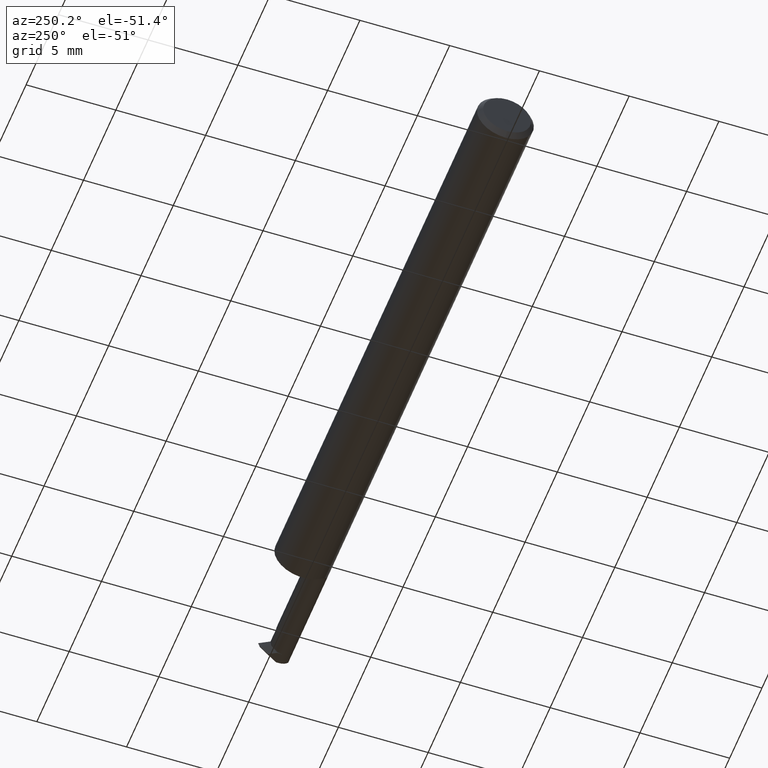
[diagram: clean part render]
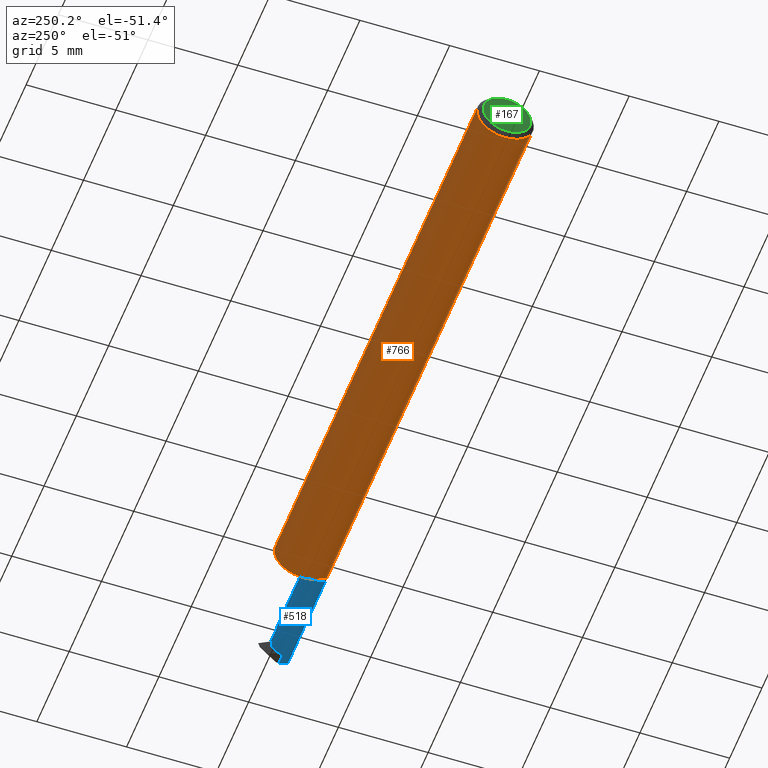
[diagram: same view with three faces highlighted in distinct colors, each labeled with its STEP entity id]
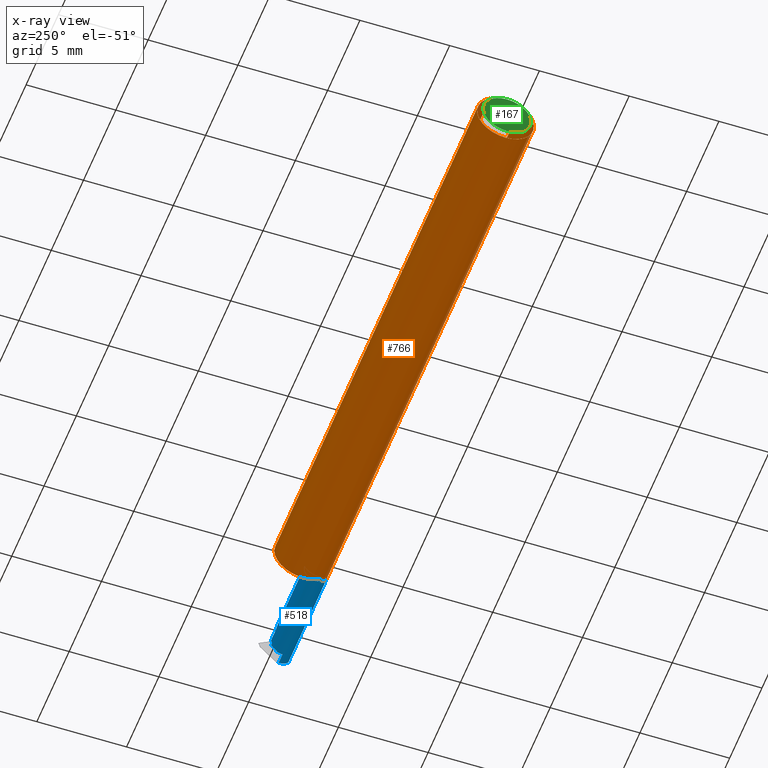
[diagram: x-ray of the same camera — body ghosted, the three highlighted faces saturated]
A machine part, auxiliary view with three faces highlighted in distinct colors.
The next image is the same camera in x-ray (body ghosted, the three faces saturated) — at least one of them is partly hidden behind the body in this view.
Their STEP definitions:

[orange] entity #766 — the highlighted cylindrical surface (edge-blend (fillet) strip) has radius 1.5837 mm, axis along (-1, -0, -0).
#2 = EDGE_CURVE ( 'NONE', #265, #480, #497, .T. ) ;
#3 = CARTESIAN_POINT ( 'NONE',  ( 1.252811054366238741, -0.05456945414940287536, -0.03043068662638008862 ) ) ;
#14 = B_SPLINE_CURVE_WITH_KNOTS ( 'NONE', 3,
 ( #253, #73, #330, #68, #320, #133, #3, #141, #264, #566, #625, #390 ),
 .UNSPECIFIED., .F., .F.,
 ( 4, 2, 2, 2, 2, 4 ),
 ( 1.964775102937643306E-07, 0.0001727984807541077690, 0.0003454004839979218119, 0.0006906044904855495725, 0.001035808496973177496, 0.001381012503460805202 ),
 .UNSPECIFIED. ) ;
#21 = LINE ( 'NONE', #467, #35 ) ;
#29 = DIRECTION ( 'NONE',  ( 0.000000000000000000, 0.000000000000000000, 1.000000000000000000 ) ) ;
#33 = CARTESIAN_POINT ( 'NONE',  ( 1.244999999999999885, -0.03398449163449160371, 0.05227405502106346330 ) ) ;
#34 = DIRECTION ( 'NONE',  ( 0.000000000000000000, 1.000000000000000000, 0.000000000000000000 ) ) ;
#35 = VECTOR ( 'NONE', #712, 39.37007874015748143 ) ;
#45 = DIRECTION ( 'NONE',  ( 1.000000000000000000, 0.000000000000000000, 0.000000000000000000 ) ) ;
#48 = CARTESIAN_POINT ( 'NONE',  ( 1.433925765466284474, -0.06235000000000000264, 0.006074234533715691838 ) ) ;
#54 = CARTESIAN_POINT ( 'NONE',  ( 1.422097359848866427, -0.05972451737451732467, 0.01790264015113353369 ) ) ;
#58 = VECTOR ( 'NONE', #680, 39.37007874015748143 ) ;
#60 = CARTESIAN_POINT ( 'NONE',  ( 1.246872896884827719, -0.04792976935622884210, 0.04070915924459904411 ) ) ;
#65 = VERTEX_POINT ( 'NONE', #579 ) ;
#68 = CARTESIAN_POINT ( 'NONE',  ( 1.261629367809834701, -0.05874277173330420820, -0.02093341624382459229 ) ) ;
#73 = CARTESIAN_POINT ( 'NONE',  ( 1.267694442236319663, -0.05972451737451730386, -0.01790264015113365859 ) ) ;
#74 = VERTEX_POINT ( 'NONE', #693 ) ;
#83 = CARTESIAN_POINT ( 'NONE',  ( 1.500000000000000222, -0.05972451737451735243, -0.01790264015113356491 ) ) ;
#91 = DIRECTION ( 'NONE',  ( -1.000000000000000000, -0.000000000000000000, -0.000000000000000000 ) ) ;
#95 = EDGE_CURVE ( 'NONE', #461, #683, #601, .T. ) ;
#99 = DIRECTION ( 'NONE',  ( -1.000000000000000000, -0.000000000000000000, -0.000000000000000000 ) ) ;
#106 = CARTESIAN_POINT ( 'NONE',  ( 1.422097359848866427, -0.05972451737451732467, 0.01790264015113353369 ) ) ;
#111 = CARTESIAN_POINT ( 'NONE',  ( 1.244999999999999885, -0.03386738844375228319, 0.05234999999999997294 ) ) ;
#113 = EDGE_LOOP ( 'NONE', ( #140, #317, #506, #516, #228, #207, #225, #118, #626, #567, #400, #350, #424 ) ) ;
#118 = ORIENTED_EDGE ( 'NONE', *, *, #148, .F. ) ;
#125 = DIRECTION ( 'NONE',  ( 0.000000000000000000, 0.000000000000000000, -1.000000000000000000 ) ) ;
#133 = CARTESIAN_POINT ( 'NONE',  ( 1.255286990740070774, -0.05631994730899902296, -0.02695336005890132738 ) ) ;
#138 = VECTOR ( 'NONE', #91, 39.37007874015748143 ) ;
#140 = ORIENTED_EDGE ( 'NONE', *, *, #236, .F. ) ;
#141 = CARTESIAN_POINT ( 'NONE',  ( 1.248887425056099953, -0.05018493426212367742, -0.03721994610182897956 ) ) ;
#148 = EDGE_CURVE ( 'NONE', #149, #265, #644, .T. ) ;
#149 = VERTEX_POINT ( 'NONE', #353 ) ;
#155 = EDGE_CURVE ( 'NONE', #74, #524, #205, .T. ) ;
#157 = CARTESIAN_POINT ( 'NONE',  ( 1.244999999999999885, -0.03398449163449160371, -0.05227405502106346330 ) ) ;
#175 = VERTEX_POINT ( 'NONE', #83 ) ;
#176 = CARTESIAN_POINT ( 'NONE',  ( 1.440000000000000169, -0.06235000000000005121, 7.347880794884152277E-18 ) ) ;
#177 = CARTESIAN_POINT ( 'NONE',  ( 1.269999999999999796, -0.05972451737451657527, 0.01790264015113448431 ) ) ;
#180 = CARTESIAN_POINT ( 'NONE',  ( 1.259871710243715137, -0.05820719995804415903, 0.02240966757376053678 ) ) ;
#199 = EDGE_CURVE ( 'NONE', #683, #590, #21, .T. ) ;
#205 = LINE ( 'NONE', #392, #138 ) ;
#207 = ORIENTED_EDGE ( 'NONE', *, *, #286, .F. ) ;
#219 = CARTESIAN_POINT ( 'NONE',  ( 0.000000000000000000, -0.03386738844375224849, 0.05234999999999997294 ) ) ;
#225 = ORIENTED_EDGE ( 'NONE', *, *, #2, .F. ) ;
#228 = ORIENTED_EDGE ( 'NONE', *, *, #678, .F. ) ;
#231 = B_SPLINE_CURVE_WITH_KNOTS ( 'NONE', 3,
 ( #361, #534, #60, #666, #726, #180, #430, #672, #538, #177 ),
 .UNSPECIFIED., .F., .F.,
 ( 4, 2, 2, 2, 4 ),
 ( 3.875135730125662611E-06, 0.0006911681331154243164, 0.001034814631808078081, 0.001206637881154398132, 0.001378461130500717967 ),
 .UNSPECIFIED. ) ;
#236 = EDGE_CURVE ( 'NONE', #175, #580, #731, .T. ) ;
#241 = CARTESIAN_POINT ( 'NONE',  ( 1.269999999999999796, -0.05972451737451657527, 0.01790264015113448431 ) ) ;
#253 = CARTESIAN_POINT ( 'NONE',  ( 1.269999999999999796, -0.05972451737451730386, -0.01790264015113363777 ) ) ;
#255 = CARTESIAN_POINT ( 'NONE',  ( 1.244999999999999885, 0.03386738844375224849, 0.05234999999999997294 ) ) ;
#257 = CIRCLE ( 'NONE', #574, 0.06235000000000000264 ) ;
#264 = CARTESIAN_POINT ( 'NONE',  ( 1.247409451668646696, -0.04748097443779549648, -0.04064880203371788042 ) ) ;
#265 = VERTEX_POINT ( 'NONE', #111 ) ;
#276 = CARTESIAN_POINT ( 'NONE',  ( 1.244999999999999885, 0.000000000000000000, 0.000000000000000000 ) ) ;
#281 = CARTESIAN_POINT ( 'NONE',  ( 0.000000000000000000, 0.000000000000000000, 0.000000000000000000 ) ) ;
#286 = EDGE_CURVE ( 'NONE', #480, #331, #231, .T. ) ;
#289 = CARTESIAN_POINT ( 'NONE',  ( 1.500000000000000222, 0.000000000000000000, 0.000000000000000000 ) ) ;
#290 = DIRECTION ( 'NONE',  ( 1.000000000000000000, 0.000000000000000000, 0.000000000000000000 ) ) ;
#314 = CARTESIAN_POINT ( 'NONE',  ( 1.269999999999999796, -0.05972451737451730386, -0.01790264015113363777 ) ) ;
#317 = ORIENTED_EDGE ( 'NONE', *, *, #439, .T. ) ;
#319 = AXIS2_PLACEMENT_3D ( 'NONE', #289, #99, #29 ) ;
#320 = CARTESIAN_POINT ( 'NONE',  ( 1.259906005836843201, -0.05821839633500722200, -0.02238001840969571984 ) ) ;
#327 = AXIS2_PLACEMENT_3D ( 'NONE', #281, #394, #412 ) ;
#330 = CARTESIAN_POINT ( 'NONE',  ( 1.265495029312765585, -0.05949435531769821373, -0.01869071512488954326 ) ) ;
#331 = VERTEX_POINT ( 'NONE', #241 ) ;
#339 = VERTEX_POINT ( 'NONE', #106 ) ;
#347 = EDGE_CURVE ( 'NONE', #65, #590, #554, .T. ) ;
#350 = ORIENTED_EDGE ( 'NONE', *, *, #95, .F. ) ;
#352 = CIRCLE ( 'NONE', #319, 0.06235000000000000264 ) ;
#353 = CARTESIAN_POINT ( 'NONE',  ( 0.01000000000000001582, -0.03386738844375224849, 0.05234999999999997294 ) ) ;
#361 = CARTESIAN_POINT ( 'NONE',  ( 1.244999999999999885, -0.03398449163449160371, 0.05227405502106346330 ) ) ;
#385 = VECTOR ( 'NONE', #655, 39.37007874015748143 ) ;
#390 = CARTESIAN_POINT ( 'NONE',  ( 1.244999999999999885, -0.03398449163449160371, -0.05227405502106346330 ) ) ;
#392 = CARTESIAN_POINT ( 'NONE',  ( 2.249639673992813781E-32, -0.06234999999999999570, 1.836970198721040781E-16 ) ) ;
#394 = DIRECTION ( 'NONE',  ( -1.000000000000000000, -0.000000000000000000, -0.000000000000000000 ) ) ;
#400 = ORIENTED_EDGE ( 'NONE', *, *, #199, .F. ) ;
#411 = DIRECTION ( 'NONE',  ( 1.000000000000000000, 1.134245723387741042E-16, 0.000000000000000000 ) ) ;
#412 = DIRECTION ( 'NONE',  ( 0.000000000000000000, 0.000000000000000000, 1.000000000000000000 ) ) ;
#415 = AXIS2_PLACEMENT_3D ( 'NONE', #543, #620, #791 ) ;
#424 = ORIENTED_EDGE ( 'NONE', *, *, #671, .F. ) ;
#430 = CARTESIAN_POINT ( 'NONE',  ( 1.261589223798628145, -0.05873344909996280894, 0.02096039187779610499 ) ) ;
#439 = EDGE_CURVE ( 'NONE', #175, #74, #352, .T. ) ;
#443 = FACE_OUTER_BOUND ( 'NONE', #113, .T. ) ;
#461 = VERTEX_POINT ( 'NONE', #157 ) ;
#467 = CARTESIAN_POINT ( 'NONE',  ( 0.000000000000000000, 0.03386738844375224849, 0.05234999999999997294 ) ) ;
#480 = VERTEX_POINT ( 'NONE', #33 ) ;
#481 = CARTESIAN_POINT ( 'NONE',  ( 0.01000000000000001582, 0.000000000000000000, 0.000000000000000000 ) ) ;
#486 =( BOUNDED_CURVE ( )  B_SPLINE_CURVE ( 3, ( #176, #48, #600, #54 ),
 .UNSPECIFIED., .F., .F. ) 
 B_SPLINE_CURVE_WITH_KNOTS ( ( 4, 4 ),
 ( 4.712388980384689674, 5.003619720771991020 ),
 .UNSPECIFIED. ) 
 CURVE ( )  GEOMETRIC_REPRESENTATION_ITEM ( )  RATIONAL_B_SPLINE_CURVE ( ( 1.000000000000000000, 0.9929445347935180743, 0.9929445347935180743, 1.000000000000000000 ) ) 
 REPRESENTATION_ITEM ( '' )  );
#489 = VECTOR ( 'NONE', #290, 39.37007874015748143 ) ;
#492 = LINE ( 'NONE', #738, #58 ) ;
#497 = CIRCLE ( 'NONE', #415, 0.06235000000000000264 ) ;
#506 = ORIENTED_EDGE ( 'NONE', *, *, #155, .T. ) ;
#516 = ORIENTED_EDGE ( 'NONE', *, *, #551, .T. ) ;
#524 = VERTEX_POINT ( 'NONE', #612 ) ;
#531 = DIRECTION ( 'NONE',  ( 0.000000000000000000, 0.000000000000000000, -1.000000000000000000 ) ) ;
#534 = CARTESIAN_POINT ( 'NONE',  ( 1.245000000000000551, -0.04161940706322061340, 0.04731043168223619810 ) ) ;
#538 = CARTESIAN_POINT ( 'NONE',  ( 1.267695648212861403, -0.05972451737461931948, 0.01790264015079356605 ) ) ;
#543 = CARTESIAN_POINT ( 'NONE',  ( 1.244999999999999885, 0.000000000000000000, 0.000000000000000000 ) ) ;
#551 = EDGE_CURVE ( 'NONE', #524, #339, #486, .T. ) ;
#554 = CIRCLE ( 'NONE', #623, 0.06235000000000000264 ) ;
#566 = CARTESIAN_POINT ( 'NONE',  ( 1.245480735420237073, -0.04132121511910270828, -0.04689696388274845057 ) ) ;
#567 = ORIENTED_EDGE ( 'NONE', *, *, #347, .T. ) ;
#574 = AXIS2_PLACEMENT_3D ( 'NONE', #481, #659, #125 ) ;
#578 = EDGE_CURVE ( 'NONE', #149, #65, #257, .T. ) ;
#579 = CARTESIAN_POINT ( 'NONE',  ( 0.01000000000000001582, 0.000000000000000000, -0.06235000000000000264 ) ) ;
#580 = VERTEX_POINT ( 'NONE', #314 ) ;
#590 = VERTEX_POINT ( 'NONE', #796 ) ;
#592 = CARTESIAN_POINT ( 'NONE',  ( 0.01000000000000001582, 0.000000000000000000, 0.000000000000000000 ) ) ;
#600 = CARTESIAN_POINT ( 'NONE',  ( 1.427915815758181495, -0.06146862058302896697, 0.01208418424181842941 ) ) ;
#601 = CIRCLE ( 'NONE', #624, 0.06235000000000000264 ) ;
#612 = CARTESIAN_POINT ( 'NONE',  ( 1.440000000000000169, -0.06235000000000005121, 7.347880794884152277E-18 ) ) ;
#620 = DIRECTION ( 'NONE',  ( 1.000000000000000000, 1.134245723387741042E-16, 0.000000000000000000 ) ) ;
#623 = AXIS2_PLACEMENT_3D ( 'NONE', #592, #45, #531 ) ;
#624 = AXIS2_PLACEMENT_3D ( 'NONE', #276, #411, #34 ) ;
#625 = CARTESIAN_POINT ( 'NONE',  ( 1.244999999999999885, -0.03780010745447930087, -0.04979344080694603214 ) ) ;
#626 = ORIENTED_EDGE ( 'NONE', *, *, #578, .T. ) ;
#644 = LINE ( 'NONE', #219, #489 ) ;
#655 = DIRECTION ( 'NONE',  ( -1.000000000000000000, -1.134245723387741042E-16, -0.000000000000000000 ) ) ;
#659 = DIRECTION ( 'NONE',  ( 1.000000000000000000, 0.000000000000000000, 0.000000000000000000 ) ) ;
#666 = CARTESIAN_POINT ( 'NONE',  ( 1.252828924468620597, -0.05459141881665660612, 0.03039808342347008474 ) ) ;
#671 = EDGE_CURVE ( 'NONE', #580, #461, #14, .T. ) ;
#672 = CARTESIAN_POINT ( 'NONE',  ( 1.265489926355211514, -0.05949486328318331213, 0.01869003247091953479 ) ) ;
#678 = EDGE_CURVE ( 'NONE', #331, #339, #492, .T. ) ;
#680 = DIRECTION ( 'NONE',  ( 1.000000000000000000, 1.134245723387741042E-16, 0.000000000000000000 ) ) ;
#683 = VERTEX_POINT ( 'NONE', #255 ) ;
#685 = CYLINDRICAL_SURFACE ( 'NONE', #327, 0.06235000000000000264 ) ;
#693 = CARTESIAN_POINT ( 'NONE',  ( 1.500000000000000222, -0.06235000000000000264, 0.000000000000000000 ) ) ;
#712 = DIRECTION ( 'NONE',  ( -1.000000000000000000, -0.000000000000000000, -0.000000000000000000 ) ) ;
#720 = CARTESIAN_POINT ( 'NONE',  ( 1.370399147038914300, -0.05972451737451731774, -0.01790264015113355450 ) ) ;
#726 = CARTESIAN_POINT ( 'NONE',  ( 1.255246444394054084, -0.05629737996108075820, 0.02700227435604360751 ) ) ;
#731 = LINE ( 'NONE', #720, #385 ) ;
#738 = CARTESIAN_POINT ( 'NONE',  ( 1.370399147038914300, -0.05972451737451731774, 0.01790264015113355450 ) ) ;
#766 = ADVANCED_FACE ( 'NONE', ( #443 ), #685, .T. ) ;
#791 = DIRECTION ( 'NONE',  ( 0.000000000000000000, 1.000000000000000000, 0.000000000000000000 ) ) ;
#796 = CARTESIAN_POINT ( 'NONE',  ( 0.01000000000000001582, 0.03386738844375224849, 0.05234999999999997294 ) ) ;

[blue] entity #518 — the highlighted cylindrical surface (edge-blend (fillet) strip) has radius 0.6985 mm, axis along (-1, -0, -0).
#6 = EDGE_CURVE ( 'NONE', #246, #109, #758, .T. ) ;
#9 = ORIENTED_EDGE ( 'NONE', *, *, #6, .F. ) ;
#16 =( BOUNDED_CURVE ( )  B_SPLINE_CURVE ( 3, ( #447, #316, #690, #78 ),
 .UNSPECIFIED., .F., .T. ) 
 B_SPLINE_CURVE_WITH_KNOTS ( ( 4, 4 ),
 ( 1.204277183876086177, 1.570796326794897668 ),
 .UNSPECIFIED. ) 
 CURVE ( )  GEOMETRIC_REPRESENTATION_ITEM ( )  RATIONAL_B_SPLINE_CURVE ( ( 1.000000000000000000, 0.9888366050426361520, 0.9888366050426361520, 1.000000000000000000 ) ) 
 REPRESENTATION_ITEM ( '' )  );
#18 = EDGE_CURVE ( 'NONE', #754, #653, #322, .T. ) ;
#25 = CARTESIAN_POINT ( 'NONE',  ( 1.475228371895891621, -0.02177601815582000389, -0.02155757741455697346 ) ) ;
#36 = EDGE_CURVE ( 'NONE', #311, #395, #267, .T. ) ;
#47 = ORIENTED_EDGE ( 'NONE', *, *, #36, .F. ) ;
#55 = CARTESIAN_POINT ( 'NONE',  ( 1.269999999999999796, -0.03885000000000005116, 0.000000000000000000 ) ) ;
#58 = VECTOR ( 'NONE', #680, 39.37007874015748143 ) ;
#77 = ORIENTED_EDGE ( 'NONE', *, *, #139, .T. ) ;
#78 = CARTESIAN_POINT ( 'NONE',  ( 1.469798294077828693, -0.01134999999999997816, 0.000000000000000000 ) ) ;
#83 = CARTESIAN_POINT ( 'NONE',  ( 1.500000000000000222, -0.05972451737451735243, -0.01790264015113356491 ) ) ;
#85 = DIRECTION ( 'NONE',  ( 0.000000000000000000, 1.862623632043813590E-15, 1.000000000000000000 ) ) ;
#93 = ORIENTED_EDGE ( 'NONE', *, *, #542, .T. ) ;
#106 = CARTESIAN_POINT ( 'NONE',  ( 1.422097359848866427, -0.05972451737451732467, 0.01790264015113353369 ) ) ;
#109 = VERTEX_POINT ( 'NONE', #510 ) ;
#115 = CARTESIAN_POINT ( 'NONE',  ( 1.473924189092572501, -0.01342367646772176307, -0.01049893562539213655 ) ) ;
#116 = CIRCLE ( 'NONE', #284, 0.02750000000000005565 ) ;
#119 = CARTESIAN_POINT ( 'NONE',  ( 1.244999999999999885, -0.03885000000000005116, 0.000000000000000000 ) ) ;
#120 = CARTESIAN_POINT ( 'NONE',  ( 1.473852846440464770, -0.01317653827132691906, -0.009855118612495666550 ) ) ;
#139 = EDGE_CURVE ( 'NONE', #442, #109, #594, .T. ) ;
#175 = VERTEX_POINT ( 'NONE', #83 ) ;
#187 = CARTESIAN_POINT ( 'NONE',  ( 1.474005759765332213, -0.01389871478465289079, -0.01156264771531032021 ) ) ;
#201 = VERTEX_POINT ( 'NONE', #650 ) ;
#202 = CARTESIAN_POINT ( 'NONE',  ( 1.473975355100137330, -0.01385409030504961350, -0.01146536081080263246 ) ) ;
#209 = CARTESIAN_POINT ( 'NONE',  ( 1.473975355100137330, -0.02738463918919738574, -0.02499590969495040643 ) ) ;
#227 = CARTESIAN_POINT ( 'NONE',  ( 1.476170497951057259, -0.03885000000000002340, -0.02750000000000005218 ) ) ;
#236 = EDGE_CURVE ( 'NONE', #175, #580, #731, .T. ) ;
#237 = VECTOR ( 'NONE', #646, 39.37007874015748143 ) ;
#239 = ORIENTED_EDGE ( 'NONE', *, *, #301, .F. ) ;
#241 = CARTESIAN_POINT ( 'NONE',  ( 1.269999999999999796, -0.05972451737451657527, 0.01790264015113448431 ) ) ;
#242 = EDGE_CURVE ( 'NONE', #653, #442, #116, .T. ) ;
#243 = ORIENTED_EDGE ( 'NONE', *, *, #699, .T. ) ;
#246 = VERTEX_POINT ( 'NONE', #227 ) ;
#248 = CIRCLE ( 'NONE', #688, 0.02750000000000003136 ) ;
#249 =( BOUNDED_CURVE ( )  B_SPLINE_CURVE ( 3, ( #602, #426, #115, #366 ),
 .UNSPECIFIED., .F., .F. ) 
 B_SPLINE_CURVE_WITH_KNOTS ( ( 4, 4 ),
 ( 4.453915720960718083, 4.529129408925288480 ),
 .UNSPECIFIED. ) 
 CURVE ( )  GEOMETRIC_REPRESENTATION_ITEM ( )  RATIONAL_B_SPLINE_CURVE ( ( 1.000000000000000000, 0.9995286306529715947, 0.9995286306529715947, 1.000000000000000000 ) ) 
 REPRESENTATION_ITEM ( '' )  );
#259 = CARTESIAN_POINT ( 'NONE',  ( 1.409553586986023621, -0.01134999999999997816, 0.03044641301397626662 ) ) ;
#267 = LINE ( 'NONE', #787, #367 ) ;
#279 = CARTESIAN_POINT ( 'NONE',  ( 1.500000000000000222, -0.03884999999999987769, -0.02750000000000004871 ) ) ;
#282 = ORIENTED_EDGE ( 'NONE', *, *, #236, .T. ) ;
#284 = AXIS2_PLACEMENT_3D ( 'NONE', #660, #476, #422 ) ;
#291 = ORIENTED_EDGE ( 'NONE', *, *, #242, .T. ) ;
#301 = EDGE_CURVE ( 'NONE', #754, #311, #249, .T. ) ;
#304 = CARTESIAN_POINT ( 'NONE',  ( 1.475228371895891621, -0.02177601815582000389, -0.02155757741455697346 ) ) ;
#307 = DIRECTION ( 'NONE',  ( -1.000000000000000000, -1.134245723387741042E-16, -0.000000000000000000 ) ) ;
#311 = VERTEX_POINT ( 'NONE', #120 ) ;
#314 = CARTESIAN_POINT ( 'NONE',  ( 1.269999999999999796, -0.05972451737451730386, -0.01790264015113363777 ) ) ;
#316 = CARTESIAN_POINT ( 'NONE',  ( 1.468556368985876492, -0.01196571961165013472, -0.006700828162844590062 ) ) ;
#318 = CARTESIAN_POINT ( 'NONE',  ( 1.474035685581546851, -0.01394390647475401111, -0.01165967243955293511 ) ) ;
#321 = EDGE_LOOP ( 'NONE', ( #291, #77, #9, #696, #409, #282, #564, #344, #243, #93, #513, #47, #239, #359 ) ) ;
#322 =( BOUNDED_CURVE ( )  B_SPLINE_CURVE ( 3, ( #609, #318, #187, #436 ),
 .UNSPECIFIED., .F., .F. ) 
 B_SPLINE_CURVE_WITH_KNOTS ( ( 4, 4 ),
 ( 3.485257986103865502, 3.496934258707131260 ),
 .UNSPECIFIED. ) 
 CURVE ( )  GEOMETRIC_REPRESENTATION_ITEM ( )  RATIONAL_B_SPLINE_CURVE ( ( 1.000000000000000000, 0.9999886387537773036, 0.9999886387537773036, 1.000000000000000000 ) ) 
 REPRESENTATION_ITEM ( '' )  );
#323 = EDGE_CURVE ( 'NONE', #331, #580, #613, .T. ) ;
#324 = CARTESIAN_POINT ( 'NONE',  ( 1.476170497951057259, -0.03885000000000002340, -0.02750000000000005218 ) ) ;
#331 = VERTEX_POINT ( 'NONE', #241 ) ;
#339 = VERTEX_POINT ( 'NONE', #106 ) ;
#344 = ORIENTED_EDGE ( 'NONE', *, *, #678, .T. ) ;
#357 = DIRECTION ( 'NONE',  ( 0.000000000000000000, -1.000000000000000000, 0.000000000000000000 ) ) ;
#359 = ORIENTED_EDGE ( 'NONE', *, *, #18, .T. ) ;
#366 = CARTESIAN_POINT ( 'NONE',  ( 1.473852846440464770, -0.01317653827132691906, -0.009855118612495666550 ) ) ;
#367 = VECTOR ( 'NONE', #380, 39.37007874015748143 ) ;
#375 = LINE ( 'NONE', #785, #717 ) ;
#380 = DIRECTION ( 'NONE',  ( -1.000000000000000000, -1.134245723387741042E-16, -0.000000000000000000 ) ) ;
#384 = VERTEX_POINT ( 'NONE', #279 ) ;
#385 = VECTOR ( 'NONE', #655, 39.37007874015748143 ) ;
#395 = VERTEX_POINT ( 'NONE', #572 ) ;
#409 = ORIENTED_EDGE ( 'NONE', *, *, #433, .F. ) ;
#422 = DIRECTION ( 'NONE',  ( 0.000000000000000000, 0.000000000000000000, -1.000000000000000000 ) ) ;
#426 = CARTESIAN_POINT ( 'NONE',  ( 1.473994984159307631, -0.01369484614336949693, -0.01113300552786451215 ) ) ;
#428 = DIRECTION ( 'NONE',  ( -1.000000000000000000, -1.134245723387741042E-16, -0.000000000000000000 ) ) ;
#433 = EDGE_CURVE ( 'NONE', #175, #384, #248, .T. ) ;
#436 = CARTESIAN_POINT ( 'NONE',  ( 1.473975355100137330, -0.01385409030504961350, -0.01146536081080263246 ) ) ;
#440 = CARTESIAN_POINT ( 'NONE',  ( 1.422097359848866427, -0.05972451737451732467, 0.01790264015113353369 ) ) ;
#442 = VERTEX_POINT ( 'NONE', #514 ) ;
#445 = CARTESIAN_POINT ( 'NONE',  ( 1.476050509122581289, -0.03259200295785259077, -0.02750000000000005565 ) ) ;
#447 = CARTESIAN_POINT ( 'NONE',  ( 1.467971755806501744, -0.01317653827132694508, -0.009855118612495812266 ) ) ;
#455 = CARTESIAN_POINT ( 'NONE',  ( 1.670798294077828761, -0.03884999999999987769, -0.02750000000000004871 ) ) ;
#476 = DIRECTION ( 'NONE',  ( -1.000000000000000000, -0.000000000000000000, -0.000000000000000000 ) ) ;
#492 = LINE ( 'NONE', #738, #58 ) ;
#498 = CARTESIAN_POINT ( 'NONE',  ( 1.440000000000000169, -0.01134999999999997816, 3.122849337825770881E-17 ) ) ;
#510 = CARTESIAN_POINT ( 'NONE',  ( 1.475228371895891621, -0.02177601815582000389, -0.02155757741455697346 ) ) ;
#513 = ORIENTED_EDGE ( 'NONE', *, *, #662, .F. ) ;
#514 = CARTESIAN_POINT ( 'NONE',  ( 1.473975355100137330, -0.02738463918919738574, -0.02499590969495040643 ) ) ;
#515 = CARTESIAN_POINT ( 'NONE',  ( 1.474601279444732294, -0.02538184647460621848, -0.02407724974689201200 ) ) ;
#518 = ADVANCED_FACE ( 'NONE', ( #540 ), #730, .T. ) ;
#540 = FACE_OUTER_BOUND ( 'NONE', #321, .T. ) ;
#542 = EDGE_CURVE ( 'NONE', #201, #747, #375, .T. ) ;
#552 = CARTESIAN_POINT ( 'NONE',  ( 1.398986298850612542, -0.03990374733517172007, 0.04101370114938719669 ) ) ;
#563 = CARTESIAN_POINT ( 'NONE',  ( 1.474065131528796924, -0.01398966383505123243, -0.01175643167656513499 ) ) ;
#564 = ORIENTED_EDGE ( 'NONE', *, *, #323, .F. ) ;
#572 = CARTESIAN_POINT ( 'NONE',  ( 1.467971755806501744, -0.01317653827132694508, -0.009855118612495812266 ) ) ;
#573 = CARTESIAN_POINT ( 'NONE',  ( 1.475020960382667168, -0.02350331512228461678, -0.02292562710204216342 ) ) ;
#580 = VERTEX_POINT ( 'NONE', #314 ) ;
#583 = AXIS2_PLACEMENT_3D ( 'NONE', #55, #307, #357 ) ;
#594 =( BOUNDED_CURVE ( )  B_SPLINE_CURVE ( 3, ( #209, #515, #573, #25 ),
 .UNSPECIFIED., .F., .F. ) 
 B_SPLINE_CURVE_WITH_KNOTS ( ( 4, 4 ),
 ( 2.786251048472454528, 3.026049159407427691 ),
 .UNSPECIFIED. ) 
 CURVE ( )  GEOMETRIC_REPRESENTATION_ITEM ( )  RATIONAL_B_SPLINE_CURVE ( ( 1.000000000000000000, 0.9952138100589245084, 0.9952138100589245084, 1.000000000000000000 ) ) 
 REPRESENTATION_ITEM ( '' )  );
#602 = CARTESIAN_POINT ( 'NONE',  ( 1.474065131528796924, -0.01398966383505123243, -0.01175643167656513499 ) ) ;
#605 = DIRECTION ( 'NONE',  ( 1.000000000000000000, 1.134245723387741042E-16, 0.000000000000000000 ) ) ;
#609 = CARTESIAN_POINT ( 'NONE',  ( 1.474065131528796924, -0.01398966383505123243, -0.01175643167656513499 ) ) ;
#613 = CIRCLE ( 'NONE', #583, 0.02750000000000008341 ) ;
#618 = CARTESIAN_POINT ( 'NONE',  ( 1.469798294077828693, -0.01134999999999997816, 0.000000000000000000 ) ) ;
#645 =( BOUNDED_CURVE ( )  B_SPLINE_CURVE ( 3, ( #440, #552, #259, #498 ),
 .UNSPECIFIED., .F., .F. ) 
 B_SPLINE_CURVE_WITH_KNOTS ( ( 4, 4 ),
 ( 5.421296776229736381, 7.853981633974482790 ),
 .UNSPECIFIED. ) 
 CURVE ( )  GEOMETRIC_REPRESENTATION_ITEM ( )  RATIONAL_B_SPLINE_CURVE ( ( 1.000000000000000000, 0.5647188418235031815, 0.5647188418235031815, 1.000000000000000000 ) ) 
 REPRESENTATION_ITEM ( '' )  );
#646 = DIRECTION ( 'NONE',  ( -1.000000000000000000, -0.000000000000000000, -0.000000000000000000 ) ) ;
#650 = CARTESIAN_POINT ( 'NONE',  ( 1.440000000000000169, -0.01134999999999997816, 3.122849337825770881E-17 ) ) ;
#653 = VERTEX_POINT ( 'NONE', #202 ) ;
#655 = DIRECTION ( 'NONE',  ( -1.000000000000000000, -1.134245723387741042E-16, -0.000000000000000000 ) ) ;
#660 = CARTESIAN_POINT ( 'NONE',  ( 1.473975355100137330, -0.03885000000000002340, 0.000000000000000000 ) ) ;
#662 = EDGE_CURVE ( 'NONE', #395, #747, #16, .T. ) ;
#664 = DIRECTION ( 'NONE',  ( 0.000000000000000000, -1.000000000000000000, 0.000000000000000000 ) ) ;
#678 = EDGE_CURVE ( 'NONE', #331, #339, #492, .T. ) ;
#680 = DIRECTION ( 'NONE',  ( 1.000000000000000000, 1.134245723387741042E-16, 0.000000000000000000 ) ) ;
#688 = AXIS2_PLACEMENT_3D ( 'NONE', #770, #701, #85 ) ;
#690 = CARTESIAN_POINT ( 'NONE',  ( 1.469172088597526793, -0.01134999999999996775, -0.003378702423621002347 ) ) ;
#696 = ORIENTED_EDGE ( 'NONE', *, *, #792, .F. ) ;
#699 = EDGE_CURVE ( 'NONE', #339, #201, #645, .T. ) ;
#701 = DIRECTION ( 'NONE',  ( 1.000000000000000000, 0.000000000000000000, 0.000000000000000000 ) ) ;
#713 = LINE ( 'NONE', #455, #237 ) ;
#717 = VECTOR ( 'NONE', #605, 39.37007874015748143 ) ;
#720 = CARTESIAN_POINT ( 'NONE',  ( 1.370399147038914300, -0.05972451737451731774, -0.01790264015113355450 ) ) ;
#730 = CYLINDRICAL_SURFACE ( 'NONE', #751, 0.02750000000000005565 ) ;
#731 = LINE ( 'NONE', #720, #385 ) ;
#732 = CARTESIAN_POINT ( 'NONE',  ( 1.475724386251446418, -0.02668173654477137488, -0.02544299297377720578 ) ) ;
#738 = CARTESIAN_POINT ( 'NONE',  ( 1.370399147038914300, -0.05972451737451731774, 0.01790264015113355450 ) ) ;
#747 = VERTEX_POINT ( 'NONE', #618 ) ;
#751 = AXIS2_PLACEMENT_3D ( 'NONE', #119, #428, #664 ) ;
#754 = VERTEX_POINT ( 'NONE', #563 ) ;
#758 =( BOUNDED_CURVE ( )  B_SPLINE_CURVE ( 3, ( #324, #445, #732, #304 ),
 .UNSPECIFIED., .F., .F. ) 
 B_SPLINE_CURVE_WITH_KNOTS ( ( 4, 4 ),
 ( 3.324852225049196974, 3.994706894264279828 ),
 .UNSPECIFIED. ) 
 CURVE ( )  GEOMETRIC_REPRESENTATION_ITEM ( )  RATIONAL_B_SPLINE_CURVE ( ( 1.000000000000000000, 0.9629561315200089178, 0.9629561315200089178, 1.000000000000000000 ) ) 
 REPRESENTATION_ITEM ( '' )  );
#770 = CARTESIAN_POINT ( 'NONE',  ( 1.500000000000000222, -0.03885000000000002340, 0.000000000000000000 ) ) ;
#785 = CARTESIAN_POINT ( 'NONE',  ( 1.244999999999999885, -0.01134999999999999898, 3.122849337825770881E-17 ) ) ;
#787 = CARTESIAN_POINT ( 'NONE',  ( 1.244999999999999885, -0.01317653827132692426, -0.009855118612495709918 ) ) ;
#792 = EDGE_CURVE ( 'NONE', #384, #246, #713, .T. ) ;

[green] entity #167 — the highlighted planar face has unit normal (1, 0, 0).
#101 = AXIS2_PLACEMENT_3D ( 'NONE', #229, #643, #697 ) ;
#105 = DIRECTION ( 'NONE',  ( 0.000000000000000000, 0.000000000000000000, -1.000000000000000000 ) ) ;
#137 = AXIS2_PLACEMENT_3D ( 'NONE', #638, #150, #105 ) ;
#150 = DIRECTION ( 'NONE',  ( -1.000000000000000000, -0.000000000000000000, -0.000000000000000000 ) ) ;
#161 = ORIENTED_EDGE ( 'NONE', *, *, #379, .T. ) ;
#167 = ADVANCED_FACE ( 'NONE', ( #402 ), #761, .F. ) ;
#213 = CARTESIAN_POINT ( 'NONE',  ( 0.000000000000000000, 0.000000000000000000, 0.000000000000000000 ) ) ;
#229 = CARTESIAN_POINT ( 'NONE',  ( 0.000000000000000000, 0.000000000000000000, 0.000000000000000000 ) ) ;
#250 = AXIS2_PLACEMENT_3D ( 'NONE', #213, #458, #630 ) ;
#273 = CARTESIAN_POINT ( 'NONE',  ( 0.000000000000000000, 0.000000000000000000, -0.05235000000000005621 ) ) ;
#295 = CARTESIAN_POINT ( 'NONE',  ( 0.000000000000000000, 0.000000000000000000, 0.05234999999999997294 ) ) ;
#379 = EDGE_CURVE ( 'NONE', #388, #528, #733, .T. ) ;
#388 = VERTEX_POINT ( 'NONE', #273 ) ;
#402 = FACE_OUTER_BOUND ( 'NONE', #629, .T. ) ;
#446 = CIRCLE ( 'NONE', #101, 0.05235000000000005621 ) ;
#458 = DIRECTION ( 'NONE',  ( 1.000000000000000000, 0.000000000000000000, 0.000000000000000000 ) ) ;
#472 = ORIENTED_EDGE ( 'NONE', *, *, #475, .T. ) ;
#475 = EDGE_CURVE ( 'NONE', #528, #388, #446, .T. ) ;
#528 = VERTEX_POINT ( 'NONE', #295 ) ;
#629 = EDGE_LOOP ( 'NONE', ( #472, #161 ) ) ;
#630 = DIRECTION ( 'NONE',  ( 0.000000000000000000, 0.000000000000000000, -1.000000000000000000 ) ) ;
#638 = CARTESIAN_POINT ( 'NONE',  ( 0.000000000000000000, 0.000000000000000000, 0.000000000000000000 ) ) ;
#643 = DIRECTION ( 'NONE',  ( -1.000000000000000000, -0.000000000000000000, -0.000000000000000000 ) ) ;
#697 = DIRECTION ( 'NONE',  ( 0.000000000000000000, 0.000000000000000000, -1.000000000000000000 ) ) ;
#733 = CIRCLE ( 'NONE', #137, 0.05235000000000005621 ) ;
#761 = PLANE ( 'NONE',  #250 ) ;